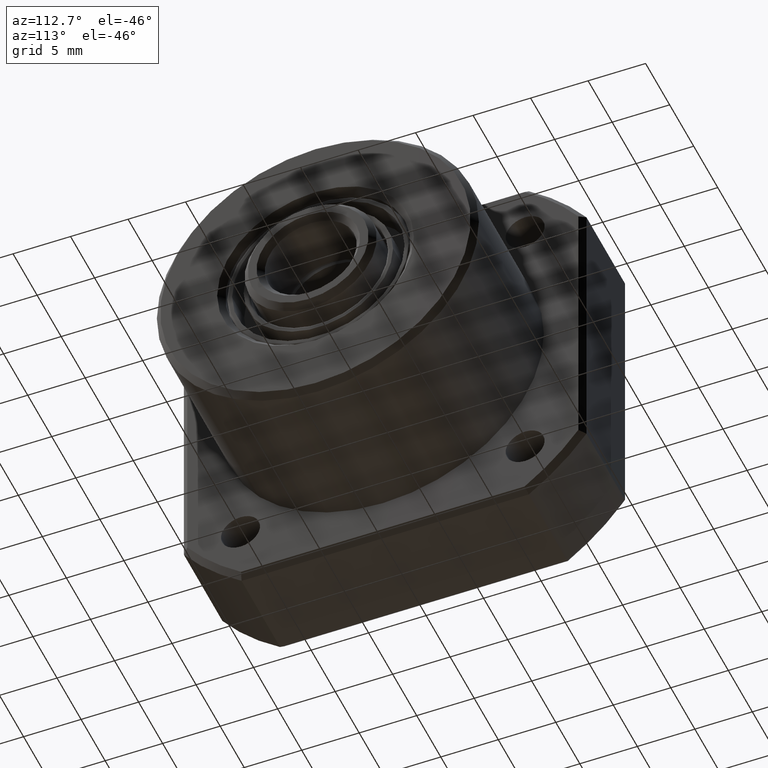
[diagram: clean part render]
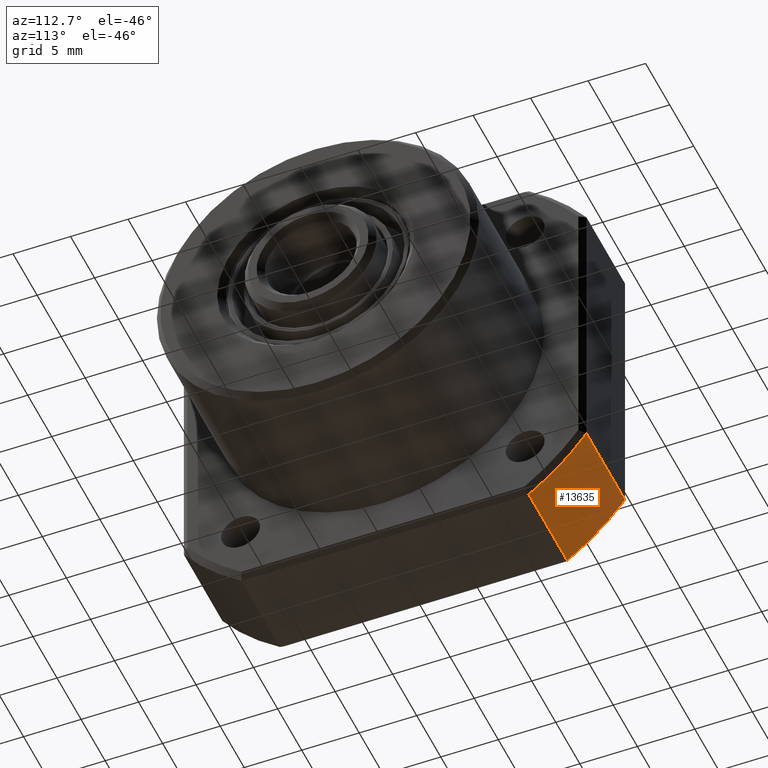
[diagram: same view with one face highlighted and labeled with its STEP entity id]
A machine part, auxiliary view. The second image highlights one B-rep face of the part: STEP entity #13635.
In plain terms, the highlighted cylindrical surface (partial cylindrical patch) has radius 21.5 mm, axis along (-1, -0, -0).
Its self-contained STEP definition (entity closure, byte-faithful):
#13501 = EDGE_CURVE ( 'NONE', #13653, #13645, #49351, .T. ) ;
#13635 = ADVANCED_FACE ( 'NONE', ( #49504 ), #49503, .T. ) ;
#13638 = EDGE_LOOP ( 'NONE', ( #13640, #13647, #13650, #13654 ) ) ;
#13640 = ORIENTED_EDGE ( 'NONE', *, *, #13641, .F. ) ;
#13641 = EDGE_CURVE ( 'NONE', #13643, #13645, #49559, .T. ) ;
#13643 = VERTEX_POINT ( 'NONE', #49554 ) ;
#13645 = VERTEX_POINT ( 'NONE', #49553 ) ;
#13647 = ORIENTED_EDGE ( 'NONE', *, *, #13648, .T. ) ;
#13648 = EDGE_CURVE ( 'NONE', #13643, #13649, #49552, .T. ) ;
#13649 = VERTEX_POINT ( 'NONE', #49547 ) ;
#13650 = ORIENTED_EDGE ( 'NONE', *, *, #13651, .F. ) ;
#13651 = EDGE_CURVE ( 'NONE', #13653, #13649, #49546, .T. ) ;
#13653 = VERTEX_POINT ( 'NONE', #49542 ) ;
#13654 = ORIENTED_EDGE ( 'NONE', *, *, #13501, .T. ) ;
#49347 = DIRECTION ( 'NONE',  ( 0.0000000000000000000, 0.0000000000000000000, -1.000000000000000000 ) ) ;
#49348 = DIRECTION ( 'NONE',  ( 1.000000000000000000, 0.0000000000000000000, 0.0000000000000000000 ) ) ;
#49349 = CARTESIAN_POINT ( 'NONE',  ( 0.5000000000000004400, 0.0000000000000000000, 0.0000000000000000000 ) ) ;
#49350 = AXIS2_PLACEMENT_3D ( 'NONE', #49349, #49348, #49347 ) ;
#49351 = CIRCLE ( 'NONE', #49350, 21.50000000000000000 ) ;
#49500 = DIRECTION ( 'NONE',  ( -1.000000000000000000, -0.0000000000000000000, -0.0000000000000000000 ) ) ;
#49501 = CARTESIAN_POINT ( 'NONE',  ( -94.46891865289678900, 0.0000000000000000000, 0.0000000000000000000 ) ) ;
#49502 = AXIS2_PLACEMENT_3D ( 'NONE', #49501, #49500, #49560 ) ;
#49503 = CYLINDRICAL_SURFACE ( 'NONE', #49502, 21.50000000000000000 ) ;
#49504 = FACE_OUTER_BOUND ( 'NONE', #13638, .T. ) ;
#49542 = CARTESIAN_POINT ( 'NONE',  ( 0.5000000000000004400, 12.48999599679678100, -17.50000000000000700 ) ) ;
#49543 = DIRECTION ( 'NONE',  ( 1.000000000000000000, 0.0000000000000000000, 0.0000000000000000000 ) ) ;
#49544 = VECTOR ( 'NONE', #49543, 1000.000000000000000 ) ;
#49545 = CARTESIAN_POINT ( 'NONE',  ( -94.46891865289678900, 12.48999599679678100, -17.50000000000000700 ) ) ;
#49546 = LINE ( 'NONE', #49545, #49544 ) ;
#49547 = CARTESIAN_POINT ( 'NONE',  ( 8.499999999999992900, 12.48999599679678100, -17.50000000000000700 ) ) ;
#49548 = DIRECTION ( 'NONE',  ( 0.0000000000000000000, 0.0000000000000000000, 1.000000000000000000 ) ) ;
#49549 = DIRECTION ( 'NONE',  ( -1.000000000000000000, -0.0000000000000000000, -0.0000000000000000000 ) ) ;
#49550 = CARTESIAN_POINT ( 'NONE',  ( 8.499999999999980500, 0.0000000000000000000, 0.0000000000000000000 ) ) ;
#49551 = AXIS2_PLACEMENT_3D ( 'NONE', #49550, #49549, #49548 ) ;
#49552 = CIRCLE ( 'NONE', #49551, 21.50000000000000000 ) ;
#49553 = CARTESIAN_POINT ( 'NONE',  ( 0.5000000000000004400, 17.50000000000000000, -12.48999599679679300 ) ) ;
#49554 = CARTESIAN_POINT ( 'NONE',  ( 8.499999999999992900, 17.50000000000000000, -12.48999599679679300 ) ) ;
#49556 = DIRECTION ( 'NONE',  ( -1.000000000000000000, -0.0000000000000000000, -0.0000000000000000000 ) ) ;
#49557 = VECTOR ( 'NONE', #49556, 1000.000000000000000 ) ;
#49558 = CARTESIAN_POINT ( 'NONE',  ( -94.46891865289678900, 17.50000000000000000, -12.48999599679679300 ) ) ;
#49559 = LINE ( 'NONE', #49558, #49557 ) ;
#49560 = DIRECTION ( 'NONE',  ( 0.0000000000000000000, 0.0000000000000000000, 1.000000000000000000 ) ) ;